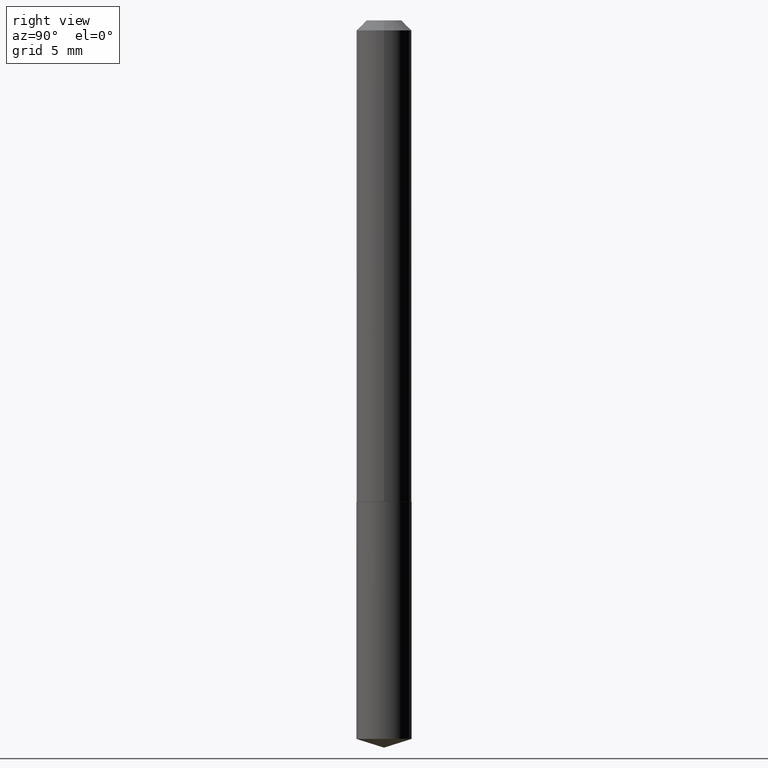
[diagram: clean part render]
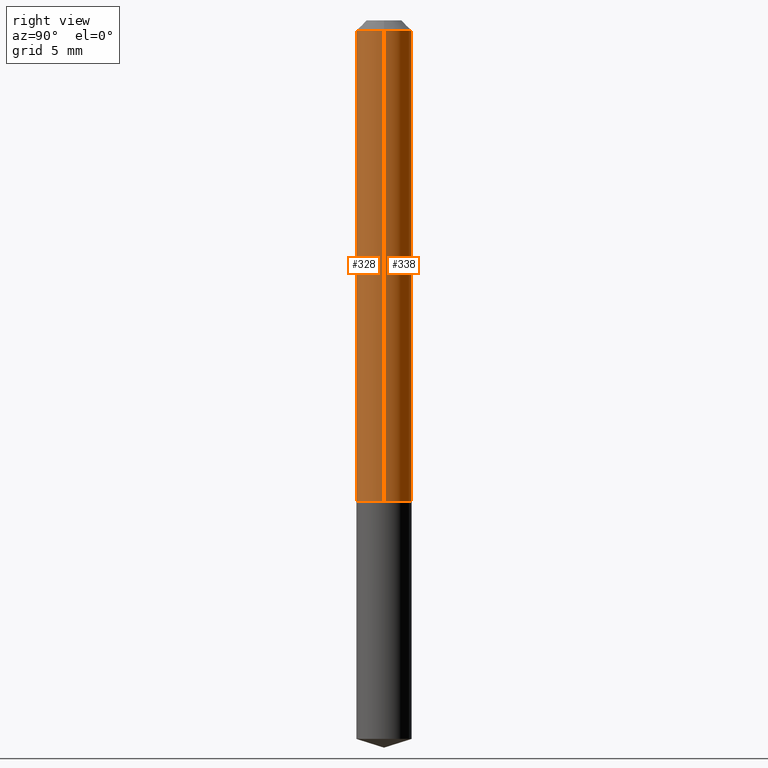
[diagram: same view with one multi-face feature highlighted, each face labeled with its STEP entity id]
A machine part, right view. The highlighted faces form ONE feature: a constant-radius fillet chain: 2 tangent blend faces with common blend radius 2.1996 mm. The faces share edges in the B-rep.
Their STEP definitions:
[1] entity #338 (Cylinder):
#19 = VERTEX_POINT ( 'NONE', #29 ) ;
#21 = CIRCLE ( 'NONE', #38, 0.08660000000000017684 ) ;
#29 = CARTESIAN_POINT ( 'NONE',  ( 0.08660000000000017684, -5.881400315281277448E-15, -1.511300000000000088 ) ) ;
#36 = DIRECTION ( 'NONE',  ( -2.445468806185136597E-29, 3.491481338843145583E-15, 1.000000000000000000 ) ) ;
#38 = AXIS2_PLACEMENT_3D ( 'NONE', #89, #36, #330 ) ;
#39 = CARTESIAN_POINT ( 'NONE',  ( -0.08660000000000017684, -4.661345738225397323E-15, -1.511300000000000088 ) ) ;
#57 = DIRECTION ( 'NONE',  ( -2.445468806185136597E-29, 3.491481338843145583E-15, 1.000000000000000000 ) ) ;
#59 = DIRECTION ( 'NONE',  ( -2.445468806185136877E-29, 3.491481338843145188E-15, 1.000000000000000000 ) ) ;
#89 = CARTESIAN_POINT ( 'NONE',  ( 3.695837006787596715E-29, -5.276675747393645735E-15, -1.511300000000000088 ) ) ;
#100 = ORIENTED_EDGE ( 'NONE', *, *, #235, .T. ) ;
#106 = ORIENTED_EDGE ( 'NONE', *, *, #172, .F. ) ;
#111 = AXIS2_PLACEMENT_3D ( 'NONE', #390, #57, #278 ) ;
#118 = LINE ( 'NONE', #388, #336 ) ;
#120 = FACE_OUTER_BOUND ( 'NONE', #266, .T. ) ;
#129 = DIRECTION ( 'NONE',  ( -2.445468806185136597E-29, 3.491481338843145583E-15, 1.000000000000000000 ) ) ;
#152 = EDGE_CURVE ( 'NONE', #19, #373, #21, .T. ) ;
#162 = CYLINDRICAL_SURFACE ( 'NONE', #318, 0.08660000000000007969 ) ;
#167 = VECTOR ( 'NONE', #198, 39.37007874015748143 ) ;
#172 = EDGE_CURVE ( 'NONE', #211, #341, #369, .T. ) ;
#198 = DIRECTION ( 'NONE',  ( -2.445468806185136877E-29, 3.491481338843145188E-15, 1.000000000000000000 ) ) ;
#200 = ORIENTED_EDGE ( 'NONE', *, *, #287, .F. ) ;
#211 = VERTEX_POINT ( 'NONE', #333 ) ;
#212 = ORIENTED_EDGE ( 'NONE', *, *, #152, .T. ) ;
#235 = EDGE_CURVE ( 'NONE', #373, #341, #118, .T. ) ;
#262 = CARTESIAN_POINT ( 'NONE',  ( 0.08660000000000007969, -6.047245678876313188E-16, 4.222769087839284057E-30 ) ) ;
#266 = EDGE_LOOP ( 'NONE', ( #212, #100, #106, #200 ) ) ;
#278 = DIRECTION ( 'NONE',  ( 1.000000000000000000, -6.982962677686267499E-15, 0.000000000000000000 ) ) ;
#287 = EDGE_CURVE ( 'NONE', #19, #211, #288, .T. ) ;
#288 = LINE ( 'NONE', #262, #167 ) ;
#315 = CARTESIAN_POINT ( 'NONE',  ( -0.08659999999999998255, -2.077562260447999006E-15, -0.03125000000000021511 ) ) ;
#318 = AXIS2_PLACEMENT_3D ( 'NONE', #339, #129, #370 ) ;
#330 = DIRECTION ( 'NONE',  ( 1.000000000000000000, -6.982962677686265133E-15, 0.000000000000000000 ) ) ;
#333 = CARTESIAN_POINT ( 'NONE',  ( 0.08659999999999998255, -7.138333597264797291E-16, -0.03125000000000021511 ) ) ;
#336 = VECTOR ( 'NONE', #59, 39.37007874015748143 ) ;
#338 = ADVANCED_FACE ( 'NONE', ( #120 ), #162, .T. ) ;
#339 = CARTESIAN_POINT ( 'NONE',  ( 0.000000000000000000, 0.000000000000000000, 0.000000000000000000 ) ) ;
#341 = VERTEX_POINT ( 'NONE', #315 ) ;
#369 = CIRCLE ( 'NONE', #111, 0.08659999999999998255 ) ;
#370 = DIRECTION ( 'NONE',  ( 1.000000000000000000, -6.982962677686267499E-15, 4.876176775795935793E-29 ) ) ;
#373 = VERTEX_POINT ( 'NONE', #39 ) ;
#388 = CARTESIAN_POINT ( 'NONE',  ( -0.08660000000000007969, 6.153300091682473272E-16, -4.259797788160751610E-30 ) ) ;
#390 = CARTESIAN_POINT ( 'NONE',  ( 7.642090019328603538E-31, -1.091087918388490390E-16, -0.03125000000000021511 ) ) ;
[2] entity #328 (Cylinder):
#10 = CYLINDRICAL_SURFACE ( 'NONE', #248, 0.08660000000000007969 ) ;
#19 = VERTEX_POINT ( 'NONE', #29 ) ;
#29 = CARTESIAN_POINT ( 'NONE',  ( 0.08660000000000017684, -5.881400315281277448E-15, -1.511300000000000088 ) ) ;
#31 = DIRECTION ( 'NONE',  ( -2.445468806185136597E-29, 3.491481338843145583E-15, 1.000000000000000000 ) ) ;
#39 = CARTESIAN_POINT ( 'NONE',  ( -0.08660000000000017684, -4.661345738225397323E-15, -1.511300000000000088 ) ) ;
#44 = AXIS2_PLACEMENT_3D ( 'NONE', #307, #31, #360 ) ;
#45 = FACE_OUTER_BOUND ( 'NONE', #66, .T. ) ;
#59 = DIRECTION ( 'NONE',  ( -2.445468806185136877E-29, 3.491481338843145188E-15, 1.000000000000000000 ) ) ;
#60 = CARTESIAN_POINT ( 'NONE',  ( 7.642090019328603538E-31, -1.091087918388490390E-16, -0.03125000000000021511 ) ) ;
#66 = EDGE_LOOP ( 'NONE', ( #79, #102, #107, #349 ) ) ;
#74 = AXIS2_PLACEMENT_3D ( 'NONE', #60, #213, #116 ) ;
#79 = ORIENTED_EDGE ( 'NONE', *, *, #235, .F. ) ;
#96 = CIRCLE ( 'NONE', #74, 0.08659999999999998255 ) ;
#99 = EDGE_CURVE ( 'NONE', #341, #211, #96, .T. ) ;
#102 = ORIENTED_EDGE ( 'NONE', *, *, #142, .T. ) ;
#107 = ORIENTED_EDGE ( 'NONE', *, *, #287, .T. ) ;
#116 = DIRECTION ( 'NONE',  ( 1.000000000000000000, -6.982962677686267499E-15, 0.000000000000000000 ) ) ;
#118 = LINE ( 'NONE', #388, #336 ) ;
#142 = EDGE_CURVE ( 'NONE', #373, #19, #255, .T. ) ;
#160 = DIRECTION ( 'NONE',  ( 1.000000000000000000, -6.982962677686267499E-15, 4.876176775795935793E-29 ) ) ;
#167 = VECTOR ( 'NONE', #198, 39.37007874015748143 ) ;
#198 = DIRECTION ( 'NONE',  ( -2.445468806185136877E-29, 3.491481338843145188E-15, 1.000000000000000000 ) ) ;
#211 = VERTEX_POINT ( 'NONE', #333 ) ;
#213 = DIRECTION ( 'NONE',  ( -2.445468806185136597E-29, 3.491481338843145583E-15, 1.000000000000000000 ) ) ;
#235 = EDGE_CURVE ( 'NONE', #373, #341, #118, .T. ) ;
#248 = AXIS2_PLACEMENT_3D ( 'NONE', #344, #372, #160 ) ;
#255 = CIRCLE ( 'NONE', #44, 0.08660000000000017684 ) ;
#262 = CARTESIAN_POINT ( 'NONE',  ( 0.08660000000000007969, -6.047245678876313188E-16, 4.222769087839284057E-30 ) ) ;
#287 = EDGE_CURVE ( 'NONE', #19, #211, #288, .T. ) ;
#288 = LINE ( 'NONE', #262, #167 ) ;
#307 = CARTESIAN_POINT ( 'NONE',  ( 3.695837006787596715E-29, -5.276675747393645735E-15, -1.511300000000000088 ) ) ;
#315 = CARTESIAN_POINT ( 'NONE',  ( -0.08659999999999998255, -2.077562260447999006E-15, -0.03125000000000021511 ) ) ;
#328 = ADVANCED_FACE ( 'NONE', ( #45 ), #10, .T. ) ;
#333 = CARTESIAN_POINT ( 'NONE',  ( 0.08659999999999998255, -7.138333597264797291E-16, -0.03125000000000021511 ) ) ;
#336 = VECTOR ( 'NONE', #59, 39.37007874015748143 ) ;
#341 = VERTEX_POINT ( 'NONE', #315 ) ;
#344 = CARTESIAN_POINT ( 'NONE',  ( 0.000000000000000000, 0.000000000000000000, 0.000000000000000000 ) ) ;
#349 = ORIENTED_EDGE ( 'NONE', *, *, #99, .F. ) ;
#360 = DIRECTION ( 'NONE',  ( 1.000000000000000000, -6.982962677686265133E-15, 0.000000000000000000 ) ) ;
#372 = DIRECTION ( 'NONE',  ( -2.445468806185136597E-29, 3.491481338843145583E-15, 1.000000000000000000 ) ) ;
#373 = VERTEX_POINT ( 'NONE', #39 ) ;
#388 = CARTESIAN_POINT ( 'NONE',  ( -0.08660000000000007969, 6.153300091682473272E-16, -4.259797788160751610E-30 ) ) ;